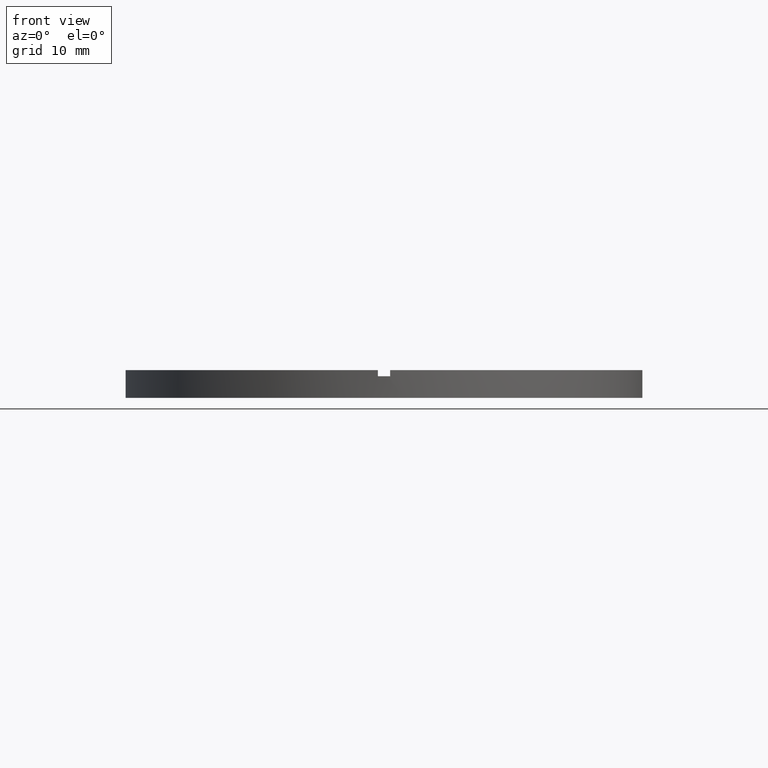
[diagram: clean part render]
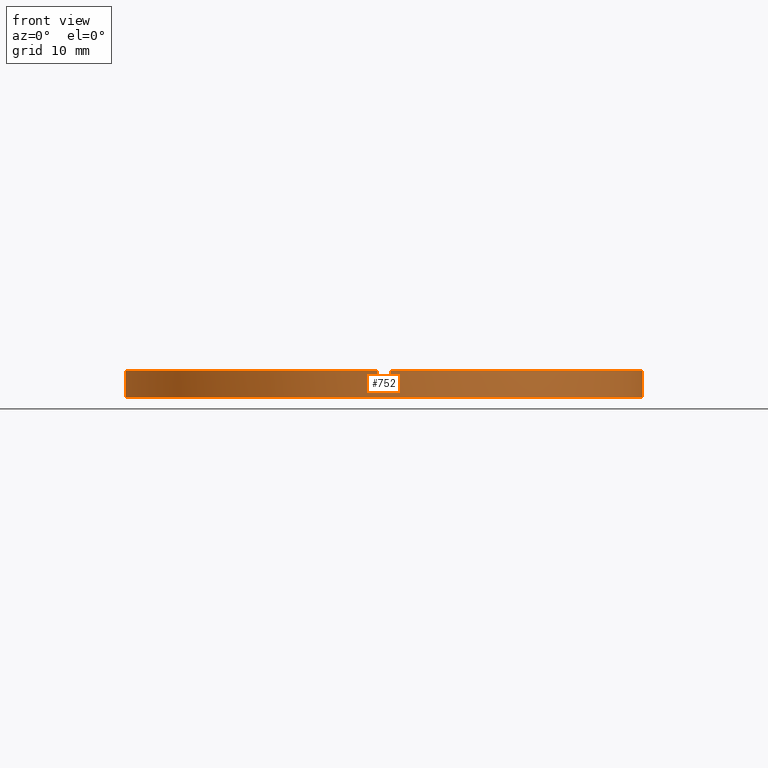
[diagram: same view with one face highlighted and labeled with its STEP entity id]
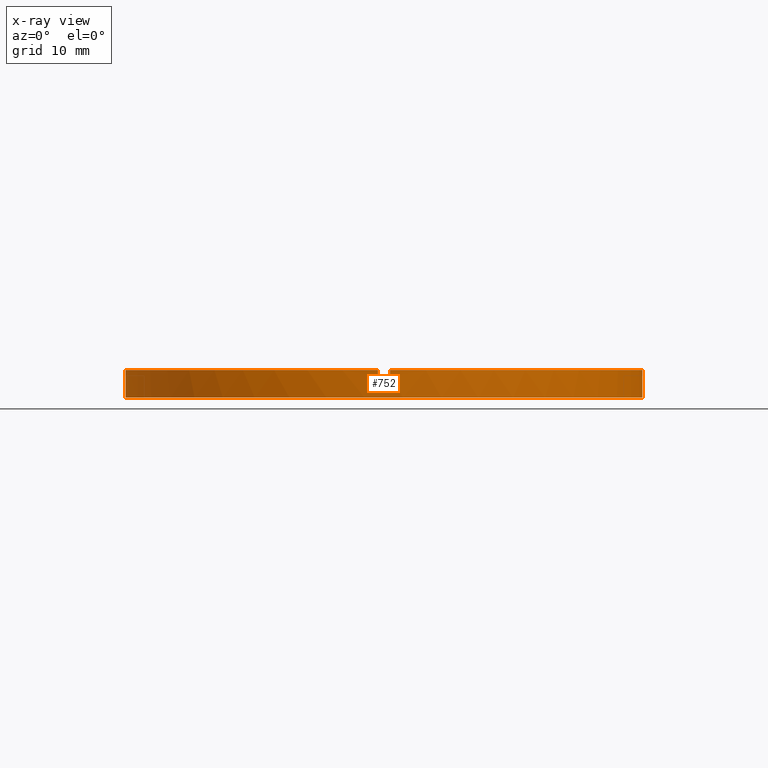
[diagram: x-ray of the same camera — body ghosted, the highlighted face saturated]
A machine part, front view. The second image highlights one B-rep face of the part: STEP entity #752.
The next image is the same camera in x-ray: the body ghosted, the highlighted face saturated — about 0% of this face is hidden behind the body in this view.
In plain terms, the highlighted cylindrical surface (partial cylindrical patch) has radius 42 mm, axis along (-0, -0, -1).
Its self-contained STEP definition (entity closure, byte-faithful):
#2 = AXIS2_PLACEMENT_3D ( 'NONE', #567, #324, #333 ) ;
#4 = VERTEX_POINT ( 'NONE', #776 ) ;
#9 = EDGE_CURVE ( 'NONE', #652, #780, #679, .T. ) ;
#11 = ORIENTED_EDGE ( 'NONE', *, *, #76, .F. ) ;
#29 = EDGE_LOOP ( 'NONE', ( #11, #640, #777, #107, #498, #658, #772, #293, #524, #643, #232, #224 ) ) ;
#39 = CARTESIAN_POINT ( 'NONE',  ( 0.000000000000000000, 0.000000000000000000, 3.499999999999999556 ) ) ;
#45 = EDGE_CURVE ( 'NONE', #656, #648, #116, .T. ) ;
#50 = DIRECTION ( 'NONE',  ( -0.000000000000000000, -0.000000000000000000, -1.000000000000000000 ) ) ;
#70 = VERTEX_POINT ( 'NONE', #84 ) ;
#76 = EDGE_CURVE ( 'NONE', #258, #304, #384, .T. ) ;
#82 = FACE_OUTER_BOUND ( 'NONE', #29, .T. ) ;
#83 = DIRECTION ( 'NONE',  ( 1.000000000000000000, 0.000000000000000000, 0.000000000000000000 ) ) ;
#84 = CARTESIAN_POINT ( 'NONE',  ( 0.9999999999998412381, -41.98809355043403713, 4.500000000000000000 ) ) ;
#90 = DIRECTION ( 'NONE',  ( 1.000000000000000000, 0.000000000000000000, 0.000000000000000000 ) ) ;
#101 = DIRECTION ( 'NONE',  ( 0.000000000000000000, 0.000000000000000000, 1.000000000000000000 ) ) ;
#107 = ORIENTED_EDGE ( 'NONE', *, *, #710, .F. ) ;
#114 = VECTOR ( 'NONE', #286, 1000.000000000000000 ) ;
#116 = LINE ( 'NONE', #467, #136 ) ;
#136 = VECTOR ( 'NONE', #676, 1000.000000000000000 ) ;
#142 = CIRCLE ( 'NONE', #158, 42.00000000000000000 ) ;
#146 = AXIS2_PLACEMENT_3D ( 'NONE', #418, #718, #474 ) ;
#158 = AXIS2_PLACEMENT_3D ( 'NONE', #778, #101, #283 ) ;
#165 = CIRCLE ( 'NONE', #759, 42.00000000000000000 ) ;
#171 = VECTOR ( 'NONE', #270, 1000.000000000000000 ) ;
#172 = EDGE_CURVE ( 'NONE', #4, #760, #692, .T. ) ;
#211 = EDGE_CURVE ( 'NONE', #656, #780, #142, .T. ) ;
#222 = EDGE_CURVE ( 'NONE', #553, #304, #165, .T. ) ;
#224 = ORIENTED_EDGE ( 'NONE', *, *, #222, .T. ) ;
#227 = CARTESIAN_POINT ( 'NONE',  ( 42.00000000000000000, 5.143516556418883322E-15, 0.000000000000000000 ) ) ;
#232 = ORIENTED_EDGE ( 'NONE', *, *, #655, .T. ) ;
#241 = EDGE_CURVE ( 'NONE', #70, #316, #437, .T. ) ;
#248 = CARTESIAN_POINT ( 'NONE',  ( 42.00000000000000000, 5.143516556418883322E-15, 4.500000000000000000 ) ) ;
#258 = VERTEX_POINT ( 'NONE', #306 ) ;
#263 = CARTESIAN_POINT ( 'NONE',  ( 41.98809355043403002, -1.000000000000156541, 4.500000000000000000 ) ) ;
#270 = DIRECTION ( 'NONE',  ( 0.000000000000000000, 0.000000000000000000, 1.000000000000000000 ) ) ;
#279 = CIRCLE ( 'NONE', #471, 42.00000000000000000 ) ;
#283 = DIRECTION ( 'NONE',  ( 1.000000000000000000, 0.000000000000000000, 0.000000000000000000 ) ) ;
#285 = CARTESIAN_POINT ( 'NONE',  ( 0.000000000000000000, 0.000000000000000000, 3.499999999999999556 ) ) ;
#286 = DIRECTION ( 'NONE',  ( 0.000000000000000000, 0.000000000000000000, 1.000000000000000000 ) ) ;
#293 = ORIENTED_EDGE ( 'NONE', *, *, #211, .F. ) ;
#304 = VERTEX_POINT ( 'NONE', #227 ) ;
#306 = CARTESIAN_POINT ( 'NONE',  ( 42.00000000000000000, 5.143516556418883322E-15, 3.499999999999999556 ) ) ;
#316 = VERTEX_POINT ( 'NONE', #533 ) ;
#324 = DIRECTION ( 'NONE',  ( 0.000000000000000000, 0.000000000000000000, 1.000000000000000000 ) ) ;
#325 = CARTESIAN_POINT ( 'NONE',  ( -42.00000000000000000, 0.000000000000000000, 0.000000000000000000 ) ) ;
#327 = EDGE_CURVE ( 'NONE', #4, #258, #435, .T. ) ;
#333 = DIRECTION ( 'NONE',  ( 1.000000000000000000, 0.000000000000000000, 0.000000000000000000 ) ) ;
#346 = CARTESIAN_POINT ( 'NONE',  ( -42.00000000000000000, 0.000000000000000000, 4.500000000000000000 ) ) ;
#356 = DIRECTION ( 'NONE',  ( 1.000000000000000000, 0.000000000000000000, 0.000000000000000000 ) ) ;
#363 = DIRECTION ( 'NONE',  ( -0.000000000000000000, -0.000000000000000000, -1.000000000000000000 ) ) ;
#366 = VECTOR ( 'NONE', #363, 1000.000000000000000 ) ;
#384 = LINE ( 'NONE', #248, #366 ) ;
#405 = CARTESIAN_POINT ( 'NONE',  ( -41.98809355043403713, -1.000000000000029088, 4.500000000000000000 ) ) ;
#414 = VECTOR ( 'NONE', #691, 1000.000000000000000 ) ;
#418 = CARTESIAN_POINT ( 'NONE',  ( 0.000000000000000000, 0.000000000000000000, 3.499999999999999556 ) ) ;
#421 = CARTESIAN_POINT ( 'NONE',  ( 0.000000000000000000, 0.000000000000000000, 0.000000000000000000 ) ) ;
#435 = CIRCLE ( 'NONE', #479, 42.00000000000000000 ) ;
#437 = LINE ( 'NONE', #489, #414 ) ;
#439 = LINE ( 'NONE', #346, #716 ) ;
#450 = DIRECTION ( 'NONE',  ( 0.000000000000000000, 0.000000000000000000, 1.000000000000000000 ) ) ;
#452 = CIRCLE ( 'NONE', #146, 42.00000000000000000 ) ;
#460 = CARTESIAN_POINT ( 'NONE',  ( -42.00000000000000000, 0.000000000000000000, 3.499999999999999556 ) ) ;
#467 = CARTESIAN_POINT ( 'NONE',  ( -41.98809355043403713, -1.000000000000029088, 4.500000000000000000 ) ) ;
#471 = AXIS2_PLACEMENT_3D ( 'NONE', #39, #511, #90 ) ;
#472 = CARTESIAN_POINT ( 'NONE',  ( -1.000000000000158762, -41.98809355043403002, 4.500000000000000000 ) ) ;
#474 = DIRECTION ( 'NONE',  ( 1.000000000000000000, 0.000000000000000000, 0.000000000000000000 ) ) ;
#479 = AXIS2_PLACEMENT_3D ( 'NONE', #285, #614, #356 ) ;
#482 = CARTESIAN_POINT ( 'NONE',  ( -41.98809355043403713, -1.000000000000029088, 3.499999999999999556 ) ) ;
#489 = CARTESIAN_POINT ( 'NONE',  ( 0.9999999999998412381, -41.98809355043403713, 4.500000000000000000 ) ) ;
#496 = VERTEX_POINT ( 'NONE', #460 ) ;
#498 = ORIENTED_EDGE ( 'NONE', *, *, #241, .T. ) ;
#506 = DIRECTION ( 'NONE',  ( -0.000000000000000000, -0.000000000000000000, -1.000000000000000000 ) ) ;
#511 = DIRECTION ( 'NONE',  ( -0.000000000000000000, 0.000000000000000000, 1.000000000000000000 ) ) ;
#516 = DIRECTION ( 'NONE',  ( -1.000000000000000000, 0.000000000000000000, 0.000000000000000000 ) ) ;
#524 = ORIENTED_EDGE ( 'NONE', *, *, #45, .T. ) ;
#533 = CARTESIAN_POINT ( 'NONE',  ( 0.9999999999998412381, -41.98809355043403713, 3.499999999999999556 ) ) ;
#550 = CIRCLE ( 'NONE', #2, 42.00000000000000000 ) ;
#553 = VERTEX_POINT ( 'NONE', #325 ) ;
#567 = CARTESIAN_POINT ( 'NONE',  ( 0.000000000000000000, 0.000000000000000000, 4.500000000000000000 ) ) ;
#591 = CYLINDRICAL_SURFACE ( 'NONE', #708, 42.00000000000000000 ) ;
#598 = EDGE_CURVE ( 'NONE', #496, #648, #452, .T. ) ;
#614 = DIRECTION ( 'NONE',  ( 0.000000000000000000, 0.000000000000000000, 1.000000000000000000 ) ) ;
#627 = CARTESIAN_POINT ( 'NONE',  ( 41.98809355043403002, -1.000000000000156541, 4.500000000000000000 ) ) ;
#640 = ORIENTED_EDGE ( 'NONE', *, *, #327, .F. ) ;
#643 = ORIENTED_EDGE ( 'NONE', *, *, #598, .F. ) ;
#648 = VERTEX_POINT ( 'NONE', #482 ) ;
#652 = VERTEX_POINT ( 'NONE', #768 ) ;
#655 = EDGE_CURVE ( 'NONE', #496, #553, #439, .T. ) ;
#656 = VERTEX_POINT ( 'NONE', #405 ) ;
#658 = ORIENTED_EDGE ( 'NONE', *, *, #714, .F. ) ;
#676 = DIRECTION ( 'NONE',  ( -0.000000000000000000, -0.000000000000000000, -1.000000000000000000 ) ) ;
#679 = LINE ( 'NONE', #472, #114 ) ;
#691 = DIRECTION ( 'NONE',  ( -0.000000000000000000, -0.000000000000000000, -1.000000000000000000 ) ) ;
#692 = LINE ( 'NONE', #263, #171 ) ;
#694 = CARTESIAN_POINT ( 'NONE',  ( -1.000000000000158762, -41.98809355043403002, 4.500000000000000000 ) ) ;
#708 = AXIS2_PLACEMENT_3D ( 'NONE', #743, #506, #516 ) ;
#710 = EDGE_CURVE ( 'NONE', #70, #760, #550, .T. ) ;
#714 = EDGE_CURVE ( 'NONE', #652, #316, #279, .T. ) ;
#716 = VECTOR ( 'NONE', #50, 1000.000000000000000 ) ;
#718 = DIRECTION ( 'NONE',  ( 0.000000000000000000, 0.000000000000000000, 1.000000000000000000 ) ) ;
#743 = CARTESIAN_POINT ( 'NONE',  ( 0.000000000000000000, 0.000000000000000000, 4.500000000000000000 ) ) ;
#752 = ADVANCED_FACE ( 'NONE', ( #82 ), #591, .T. ) ;
#759 = AXIS2_PLACEMENT_3D ( 'NONE', #421, #450, #83 ) ;
#760 = VERTEX_POINT ( 'NONE', #627 ) ;
#768 = CARTESIAN_POINT ( 'NONE',  ( -1.000000000000158762, -41.98809355043403002, 3.499999999999999556 ) ) ;
#772 = ORIENTED_EDGE ( 'NONE', *, *, #9, .T. ) ;
#776 = CARTESIAN_POINT ( 'NONE',  ( 41.98809355043403002, -1.000000000000156541, 3.499999999999999556 ) ) ;
#777 = ORIENTED_EDGE ( 'NONE', *, *, #172, .T. ) ;
#778 = CARTESIAN_POINT ( 'NONE',  ( 0.000000000000000000, 0.000000000000000000, 4.500000000000000000 ) ) ;
#780 = VERTEX_POINT ( 'NONE', #694 ) ;